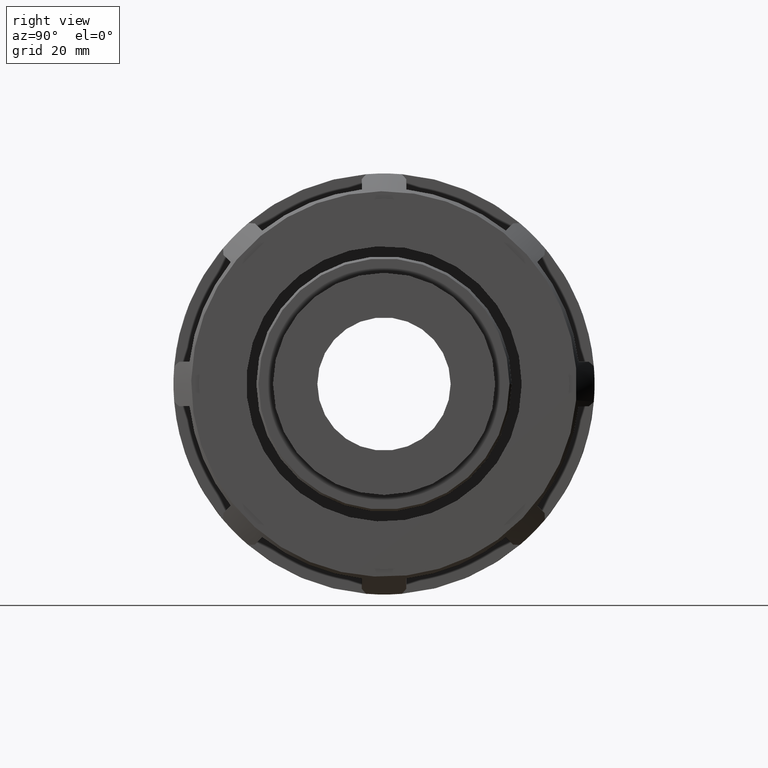
[diagram: clean part render]
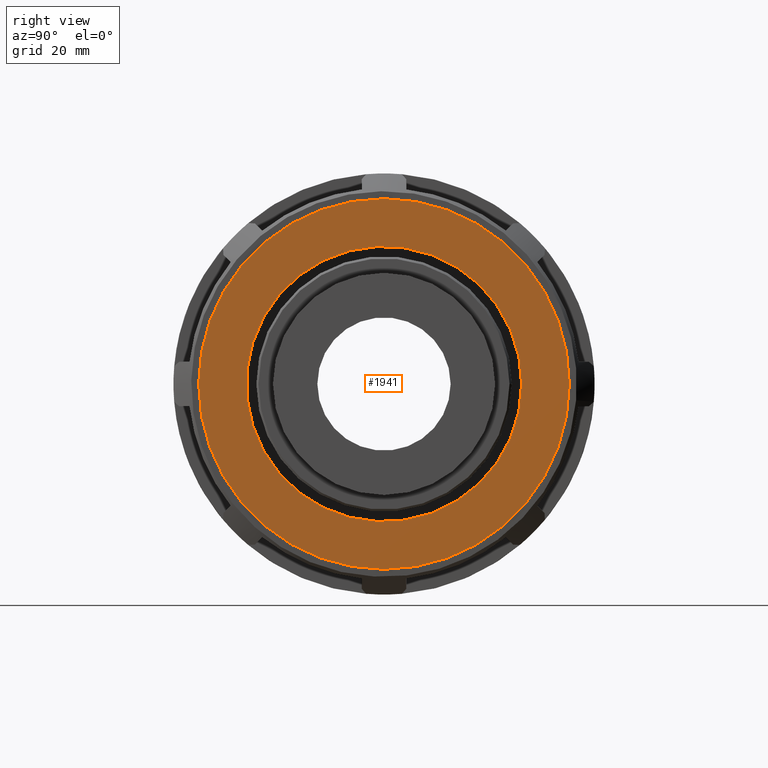
[diagram: same view with one face highlighted and labeled with its STEP entity id]
A machine part, right view. The second image highlights one B-rep face of the part: STEP entity #1941.
In plain terms, the highlighted planar face has unit normal (1, 0, 0).
Its self-contained STEP definition (entity closure, byte-faithful):
#71=FACE_BOUND('',#416,.T.);
#150=CIRCLE('',#2126,49.72);
#151=CIRCLE('',#2128,36.9375);
#287=FACE_OUTER_BOUND('',#415,.T.);
#415=EDGE_LOOP('',(#1755));
#416=EDGE_LOOP('',(#1756));
#938=VERTEX_POINT('',#3298);
#939=VERTEX_POINT('',#3301);
#1212=EDGE_CURVE('',#938,#938,#150,.T.);
#1213=EDGE_CURVE('',#939,#939,#151,.T.);
#1755=ORIENTED_EDGE('',*,*,#1212,.T.);
#1756=ORIENTED_EDGE('',*,*,#1213,.F.);
#1835=PLANE('',#2127);
#1941=ADVANCED_FACE('',(#287,#71),#1835,.T.);
#2126=AXIS2_PLACEMENT_3D('',#3299,#2657,#2658);
#2127=AXIS2_PLACEMENT_3D('',#3300,#2659,#2660);
#2128=AXIS2_PLACEMENT_3D('',#3302,#2661,#2662);
#2657=DIRECTION('center_axis',(1.,0.,0.));
#2658=DIRECTION('ref_axis',(0.,0.,-1.));
#2659=DIRECTION('center_axis',(1.,0.,0.));
#2660=DIRECTION('ref_axis',(0.,0.,-1.));
#2661=DIRECTION('center_axis',(1.,0.,0.));
#2662=DIRECTION('ref_axis',(0.,0.,-1.));
#3298=CARTESIAN_POINT('',(45.6,49.72,0.));
#3299=CARTESIAN_POINT('Origin',(45.6,0.,0.));
#3300=CARTESIAN_POINT('Origin',(45.6,36.9375,0.));
#3301=CARTESIAN_POINT('',(45.6,36.9375,0.));
#3302=CARTESIAN_POINT('Origin',(45.6,0.,0.));